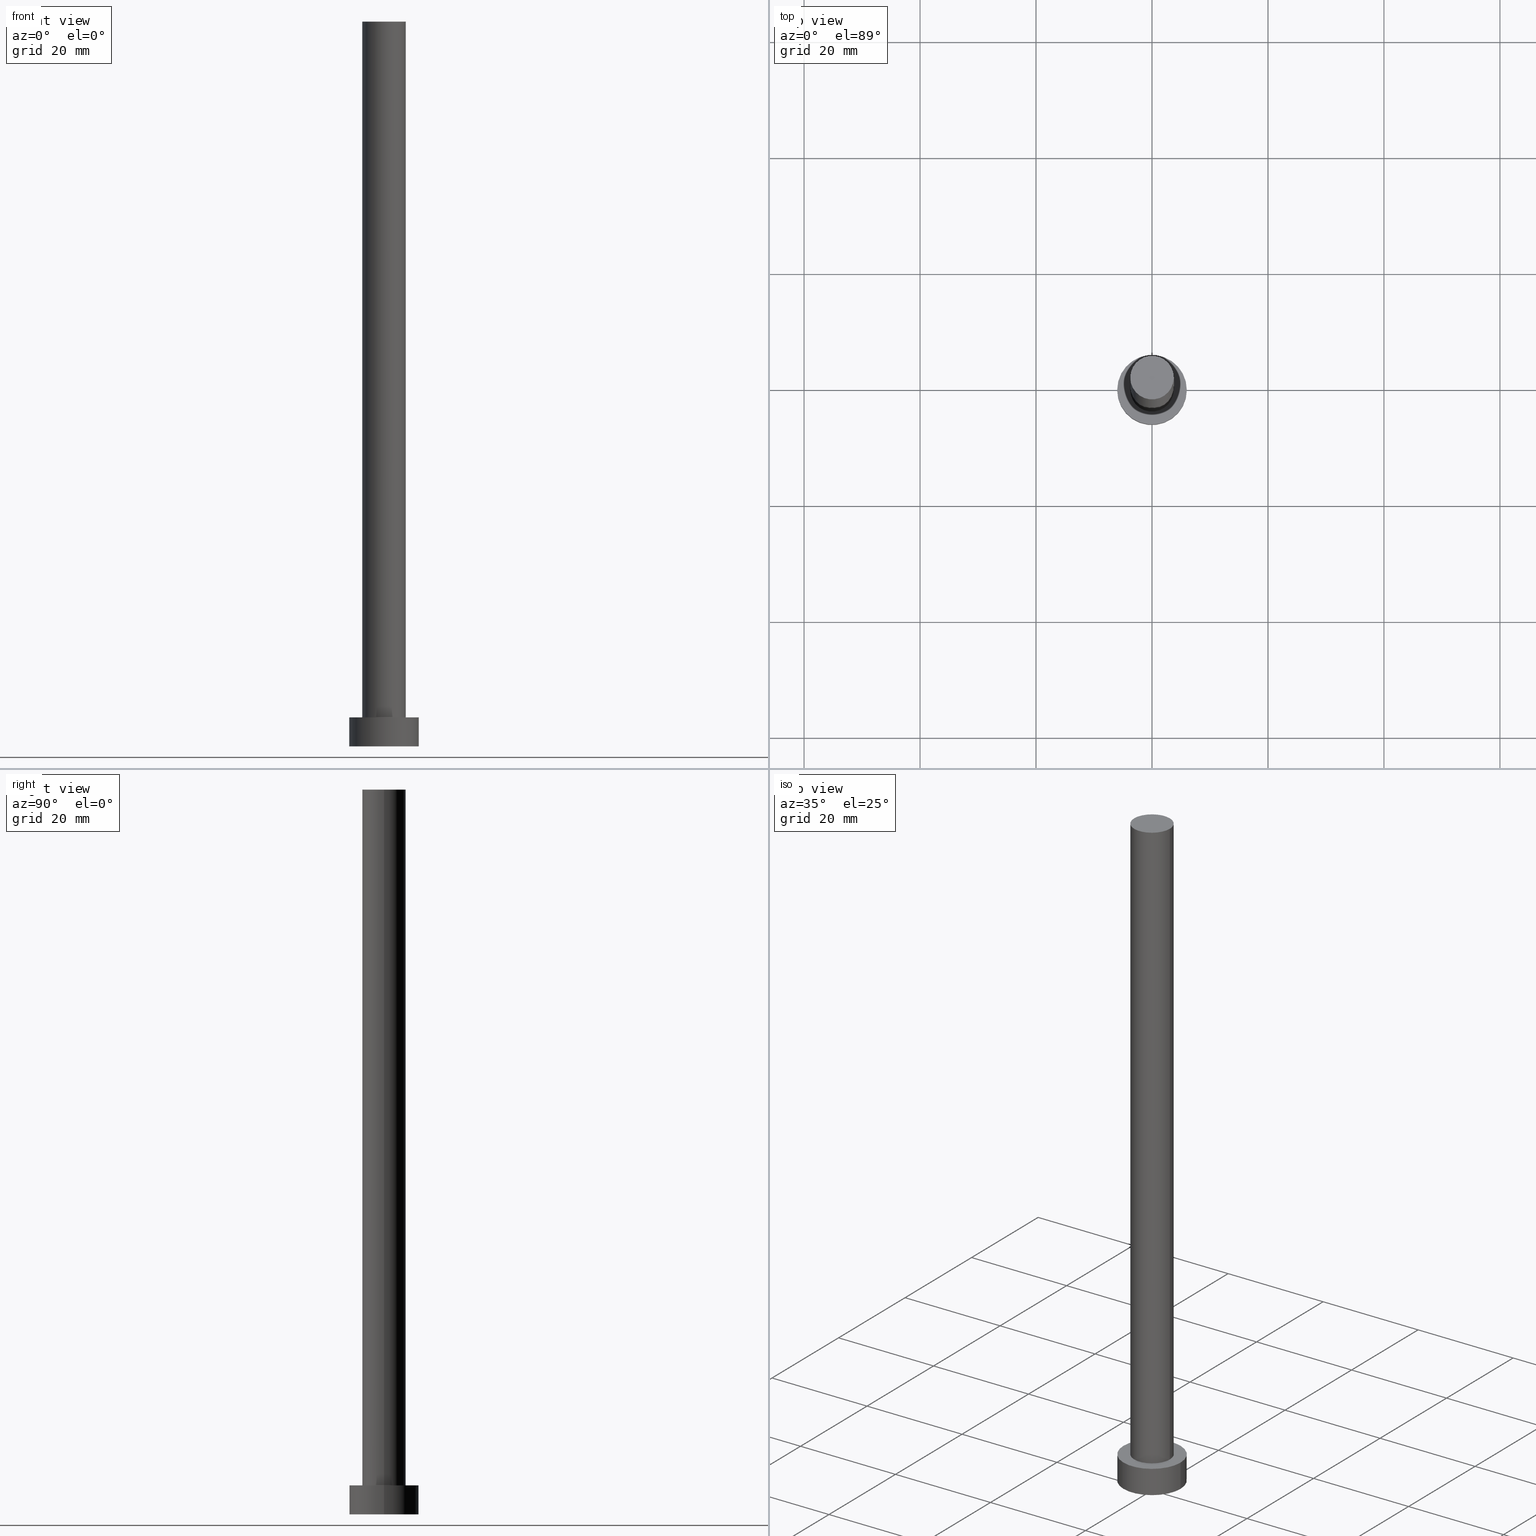
[diagram: canonical four-view strip — front | top / right | iso, engineering-drawing reading convention]
A machine part, canonical four-view strip (front | top / right | iso — engineering-drawing reading convention). The complete STEP part file that produces these views, byte-faithful:
ISO-10303-21;
HEADER;
FILE_DESCRIPTION (( 'STEP AP203' ),
    '1' );
FILE_NAME ('73c1.STEP',
    '2023-02-13T14:50:13',
    ( '' ),
    ( '' ),
    'SwSTEP 2.0',
    'SolidWorks 2019',
    '' );
FILE_SCHEMA (( 'CONFIG_CONTROL_DESIGN' ));
ENDSEC;

DATA;
#1 = EDGE_CURVE ( 'NONE', #45, #24, #181, .T. ) ;
#2 = VERTEX_POINT ( 'NONE', #171 ) ;
#3 = ORIENTED_EDGE ( 'NONE', *, *, #178, .F. ) ;
#4 = EDGE_LOOP ( 'NONE', ( #102, #169, #203, #167 ) ) ;
#5 = CC_DESIGN_APPROVAL ( #6, ( #12 ) ) ;
#6 = APPROVAL ( #132, 'NEUR�EN�' ) ;
#7 = CIRCLE ( 'NONE', #68, 3.750000000000000000 ) ;
#8 = CARTESIAN_POINT ( 'NONE',  ( 0.000000000000000000, 0.000000000000000000, 5.000000000000000000 ) ) ;
#9 = APPROVAL_STATUS ( 'not_yet_approved' ) ;
#10 = ADVANCED_BREP_SHAPE_REPRESENTATION ( '73c1', ( #71, #21 ), #152 ) ;
#11 = CARTESIAN_POINT ( 'NONE',  ( 0.000000000000000000, 0.000000000000000000, 125.0000000000000000 ) ) ;
#12 = SECURITY_CLASSIFICATION ( '', '', #89 ) ;
#13 = APPROVAL_ROLE ( '' ) ;
#14 = EDGE_LOOP ( 'NONE', ( #236, #143, #245, #40 ) ) ;
#15 = EDGE_CURVE ( 'NONE', #86, #204, #208, .T. ) ;
#16 = APPROVAL_DATE_TIME ( #33, #219 ) ;
#17 = CARTESIAN_POINT ( 'NONE',  ( 0.000000000000000000, 0.000000000000000000, 0.000000000000000000 ) ) ;
#18 = CALENDAR_DATE ( 2023, 13, 2 ) ;
#19 = DIRECTION ( 'NONE',  ( -0.000000000000000000, -0.000000000000000000, -1.000000000000000000 ) ) ;
#20 = PERSON_AND_ORGANIZATION_ROLE ( 'creator' ) ;
#21 = AXIS2_PLACEMENT_3D ( 'NONE', #161, #212, #38 ) ;
#22 = CARTESIAN_POINT ( 'NONE',  ( 6.000000000000000888, 7.347880794884120722E-16, 0.000000000000000000 ) ) ;
#23 = PRODUCT ( '73c1', '73c1', '', ( #154 ) ) ;
#24 = VERTEX_POINT ( 'NONE', #49 ) ;
#25 = EDGE_CURVE ( 'NONE', #85, #45, #180, .T. ) ;
#26 = ORIENTED_EDGE ( 'NONE', *, *, #160, .F. ) ;
#27 = CARTESIAN_POINT ( 'NONE',  ( 6.000000000000000888, 7.347880794884120722E-16, 5.000000000000000000 ) ) ;
#28 = PERSON_AND_ORGANIZATION_ROLE ( 'design_owner' ) ;
#29 = DIRECTION ( 'NONE',  ( 0.000000000000000000, 0.000000000000000000, 1.000000000000000000 ) ) ;
#30 = APPROVAL_DATE_TIME ( #211, #6 ) ;
#31 = DIRECTION ( 'NONE',  ( 0.000000000000000000, 0.000000000000000000, 1.000000000000000000 ) ) ;
#32 = CARTESIAN_POINT ( 'NONE',  ( 3.750000000000000000, 4.592425496802573972E-16, 125.0000000000000000 ) ) ;
#33 = DATE_AND_TIME ( #150, #67 ) ;
#34 = APPROVAL_PERSON_ORGANIZATION ( #182, #97, #111 ) ;
#35 = DIRECTION ( 'NONE',  ( 0.000000000000000000, 0.000000000000000000, 1.000000000000000000 ) ) ;
#36 = DIRECTION ( 'NONE',  ( 1.000000000000000000, 0.000000000000000000, -0.000000000000000000 ) ) ;
#37 = CIRCLE ( 'NONE', #125, 6.000000000000000888 ) ;
#38 = DIRECTION ( 'NONE',  ( 1.000000000000000000, 0.000000000000000000, 0.000000000000000000 ) ) ;
#39 = CC_DESIGN_APPROVAL ( #219, ( #142 ) ) ;
#40 = ORIENTED_EDGE ( 'NONE', *, *, #163, .T. ) ;
#41 = EDGE_CURVE ( 'NONE', #24, #45, #7, .T. ) ;
#42 = ORIENTED_EDGE ( 'NONE', *, *, #50, .F. ) ;
#43 = AXIS2_PLACEMENT_3D ( 'NONE', #116, #185, #255 ) ;
#44 = ADVANCED_FACE ( 'NONE', ( #190 ), #240, .T. ) ;
#45 = VERTEX_POINT ( 'NONE', #247 ) ;
#46 = DIRECTION ( 'NONE',  ( -0.000000000000000000, -0.000000000000000000, -1.000000000000000000 ) ) ;
#47 = AXIS2_PLACEMENT_3D ( 'NONE', #151, #79, #36 ) ;
#48 = APPROVAL_STATUS ( 'not_yet_approved' ) ;
#49 = CARTESIAN_POINT ( 'NONE',  ( 3.750000000000000000, 4.592425496802573972E-16, 5.000000000000000000 ) ) ;
#50 = EDGE_CURVE ( 'NONE', #86, #186, #223, .T. ) ;
#51 = CARTESIAN_POINT ( 'NONE',  ( -3.750000000000000000, 0.000000000000000000, 125.0000000000000000 ) ) ;
#52 = COORDINATED_UNIVERSAL_TIME_OFFSET ( 1, 0, .AHEAD. ) ;
#53 = DIRECTION ( 'NONE',  ( 0.000000000000000000, 0.000000000000000000, 1.000000000000000000 ) ) ;
#54 = CC_DESIGN_DATE_AND_TIME_ASSIGNMENT ( #172, #230, ( #108 ) ) ;
#55 = FACE_OUTER_BOUND ( 'NONE', #202, .T. ) ;
#56 = DIRECTION ( 'NONE',  ( -0.000000000000000000, -0.000000000000000000, -1.000000000000000000 ) ) ;
#57 = DIRECTION ( 'NONE',  ( 0.000000000000000000, 0.000000000000000000, 1.000000000000000000 ) ) ;
#58 = DIRECTION ( 'NONE',  ( -0.000000000000000000, -0.000000000000000000, -1.000000000000000000 ) ) ;
#59 = ADVANCED_FACE ( 'NONE', ( #94 ), #129, .T. ) ;
#60 = ORIENTED_EDGE ( 'NONE', *, *, #1, .F. ) ;
#61 = EDGE_CURVE ( 'NONE', #2, #24, #146, .T. ) ;
#62 = VERTEX_POINT ( 'NONE', #175 ) ;
#63 = AXIS2_PLACEMENT_3D ( 'NONE', #250, #53, #229 ) ;
#64 = ORIENTED_EDGE ( 'NONE', *, *, #160, .T. ) ;
#65 = CARTESIAN_POINT ( 'NONE',  ( 0.000000000000000000, 0.000000000000000000, 5.000000000000000000 ) ) ;
#66 = CC_DESIGN_PERSON_AND_ORGANIZATION_ASSIGNMENT ( #198, #75, ( #108 ) ) ;
#67 = LOCAL_TIME ( 15, 50, 13.00000000000000000, #52 ) ;
#68 = AXIS2_PLACEMENT_3D ( 'NONE', #8, #155, #134 ) ;
#69 = CALENDAR_DATE ( 2023, 13, 2 ) ;
#70 = DIRECTION ( 'NONE',  ( -0.000000000000000000, -0.000000000000000000, -1.000000000000000000 ) ) ;
#71 = MANIFOLD_SOLID_BREP ( 'P�idat vysunut�m3', #215 ) ;
#72 = PERSON_AND_ORGANIZATION ( #217, #232 ) ;
#73 = EDGE_LOOP ( 'NONE', ( #60, #216 ) ) ;
#74 = ADVANCED_FACE ( 'NONE', ( #149, #55 ), #92, .T. ) ;
#75 = PERSON_AND_ORGANIZATION_ROLE ( 'creator' ) ;
#76 = DIRECTION ( 'NONE',  ( -1.000000000000000000, 0.000000000000000000, 0.000000000000000000 ) ) ;
#77 = PERSON_AND_ORGANIZATION_ROLE ( 'classification_officer' ) ;
#78 = COORDINATED_UNIVERSAL_TIME_OFFSET ( 1, 0, .AHEAD. ) ;
#79 = DIRECTION ( 'NONE',  ( 0.000000000000000000, 0.000000000000000000, 1.000000000000000000 ) ) ;
#80 =( LENGTH_UNIT ( ) NAMED_UNIT ( * ) SI_UNIT ( .MILLI., .METRE. ) );
#81 = CIRCLE ( 'NONE', #218, 6.000000000000000888 ) ;
#82 = CIRCLE ( 'NONE', #248, 3.750000000000000000 ) ;
#83 = ORIENTED_EDGE ( 'NONE', *, *, #87, .T. ) ;
#84 = ORIENTED_EDGE ( 'NONE', *, *, #238, .T. ) ;
#85 = VERTEX_POINT ( 'NONE', #51 ) ;
#86 = VERTEX_POINT ( 'NONE', #131 ) ;
#87 = EDGE_CURVE ( 'NONE', #85, #2, #139, .T. ) ;
#88 = CYLINDRICAL_SURFACE ( 'NONE', #235, 3.750000000000000000 ) ;
#89 = SECURITY_CLASSIFICATION_LEVEL ( 'unclassified' ) ;
#90 = DIRECTION ( 'NONE',  ( 0.000000000000000000, 0.000000000000000000, 1.000000000000000000 ) ) ;
#91 = PERSON_AND_ORGANIZATION ( #217, #232 ) ;
#92 = PLANE ( 'NONE',  #241 ) ;
#93 = PERSON_AND_ORGANIZATION ( #217, #232 ) ;
#94 = FACE_OUTER_BOUND ( 'NONE', #14, .T. ) ;
#95 = ORIENTED_EDGE ( 'NONE', *, *, #163, .F. ) ;
#96 = DATE_AND_TIME ( #69, #254 ) ;
#97 = APPROVAL ( #9, 'NEUR�EN�' ) ;
#98 = CARTESIAN_POINT ( 'NONE',  ( -6.000000000000000888, 0.000000000000000000, 5.000000000000000000 ) ) ;
#99 = AXIS2_PLACEMENT_3D ( 'NONE', #17, #29, #109 ) ;
#100 = AXIS2_PLACEMENT_3D ( 'NONE', #65, #105, #228 ) ;
#101 = ORIENTED_EDGE ( 'NONE', *, *, #61, .F. ) ;
#102 = ORIENTED_EDGE ( 'NONE', *, *, #123, .F. ) ;
#103 = LOCAL_TIME ( 15, 50, 13.00000000000000000, #78 ) ;
#104 = ORIENTED_EDGE ( 'NONE', *, *, #87, .F. ) ;
#105 = DIRECTION ( 'NONE',  ( -0.000000000000000000, -0.000000000000000000, -1.000000000000000000 ) ) ;
#106 = PERSON_AND_ORGANIZATION ( #217, #232 ) ;
#107 = DIRECTION ( 'NONE',  ( -1.000000000000000000, 0.000000000000000000, 0.000000000000000000 ) ) ;
#108 = PRODUCT_DEFINITION ( 'NEZN�M�', '', #142, #118 ) ;
#109 = DIRECTION ( 'NONE',  ( 1.000000000000000000, 0.000000000000000000, -0.000000000000000000 ) ) ;
#110 = DIRECTION ( 'NONE',  ( 0.000000000000000000, 0.000000000000000000, 1.000000000000000000 ) ) ;
#111 = APPROVAL_ROLE ( '' ) ;
#112 = CARTESIAN_POINT ( 'NONE',  ( -3.750000000000000000, 0.000000000000000000, 125.0000000000000000 ) ) ;
#113 = DIRECTION ( 'NONE',  ( -1.000000000000000000, 0.000000000000000000, 0.000000000000000000 ) ) ;
#114 = CC_DESIGN_SECURITY_CLASSIFICATION ( #12, ( #142 ) ) ;
#115 = ADVANCED_FACE ( 'NONE', ( #194 ), #197, .F. ) ;
#116 = CARTESIAN_POINT ( 'NONE',  ( 0.000000000000000000, 0.000000000000000000, 0.000000000000000000 ) ) ;
#117 = FACE_OUTER_BOUND ( 'NONE', #237, .T. ) ;
#118 = DESIGN_CONTEXT ( 'detailed design', #201, 'design' ) ;
#119 = ADVANCED_FACE ( 'NONE', ( #210 ), #88, .T. ) ;
#120 = LOCAL_TIME ( 15, 50, 13.00000000000000000, #246 ) ;
#121 = ORIENTED_EDGE ( 'NONE', *, *, #50, .T. ) ;
#122 = EDGE_LOOP ( 'NONE', ( #83, #128 ) ) ;
#123 = EDGE_CURVE ( 'NONE', #2, #85, #82, .T. ) ;
#124 = UNCERTAINTY_MEASURE_WITH_UNIT (LENGTH_MEASURE( 1.000000000000000082E-05 ), #80, 'distance_accuracy_value', 'NONE');
#125 = AXIS2_PLACEMENT_3D ( 'NONE', #200, #234, #233 ) ;
#126 = ORIENTED_EDGE ( 'NONE', *, *, #15, .T. ) ;
#127 = PRODUCT_DEFINITION_SHAPE ( 'NONE', 'NONE',  #108 ) ;
#128 = ORIENTED_EDGE ( 'NONE', *, *, #123, .T. ) ;
#129 = CYLINDRICAL_SURFACE ( 'NONE', #100, 6.000000000000000888 ) ;
#130 = CALENDAR_DATE ( 2023, 13, 2 ) ;
#131 = CARTESIAN_POINT ( 'NONE',  ( 6.000000000000000888, 7.347880794884120722E-16, 5.000000000000000000 ) ) ;
#132 = APPROVAL_STATUS ( 'not_yet_approved' ) ;
#133 = CARTESIAN_POINT ( 'NONE',  ( 0.000000000000000000, 0.000000000000000000, 5.000000000000000000 ) ) ;
#134 = DIRECTION ( 'NONE',  ( 1.000000000000000000, 0.000000000000000000, 0.000000000000000000 ) ) ;
#135 = CIRCLE ( 'NONE', #43, 6.000000000000000888 ) ;
#136 = DIRECTION ( 'NONE',  ( 1.000000000000000000, 0.000000000000000000, 0.000000000000000000 ) ) ;
#137 = APPLICATION_PROTOCOL_DEFINITION ( 'international standard', 'config_control_design', 1994, #201 ) ;
#138 =( NAMED_UNIT ( * ) SI_UNIT ( $, .STERADIAN. ) SOLID_ANGLE_UNIT ( ) );
#139 = CIRCLE ( 'NONE', #158, 3.750000000000000000 ) ;
#140 =( NAMED_UNIT ( * ) PLANE_ANGLE_UNIT ( ) SI_UNIT ( $, .RADIAN. ) );
#141 = AXIS2_PLACEMENT_3D ( 'NONE', #133, #157, #76 ) ;
#142 = PRODUCT_DEFINITION_FORMATION_WITH_SPECIFIED_SOURCE ( 'LIBOVOLN�', '', #23, .NOT_KNOWN. ) ;
#143 = ORIENTED_EDGE ( 'NONE', *, *, #238, .F. ) ;
#144 = VECTOR ( 'NONE', #70, 1000.000000000000000 ) ;
#145 = CC_DESIGN_DATE_AND_TIME_ASSIGNMENT ( #179, #176, ( #12 ) ) ;
#146 = LINE ( 'NONE', #32, #148 ) ;
#147 = APPLICATION_CONTEXT ( 'configuration controlled 3d designs of mechanical parts and assemblies' ) ;
#148 = VECTOR ( 'NONE', #221, 1000.000000000000000 ) ;
#149 = FACE_BOUND ( 'NONE', #73, .T. ) ;
#150 = CALENDAR_DATE ( 2023, 13, 2 ) ;
#151 = CARTESIAN_POINT ( 'NONE',  ( 0.000000000000000000, 0.000000000000000000, 125.0000000000000000 ) ) ;
#152 =( GEOMETRIC_REPRESENTATION_CONTEXT ( 3 ) GLOBAL_UNCERTAINTY_ASSIGNED_CONTEXT ( ( #124 ) ) GLOBAL_UNIT_ASSIGNED_CONTEXT ( ( #80, #140, #138 ) ) REPRESENTATION_CONTEXT ( 'NONE', 'WORKASPACE' ) );
#153 = ADVANCED_FACE ( 'NONE', ( #173 ), #242, .T. ) ;
#154 = MECHANICAL_CONTEXT ( 'NONE', #147, 'mechanical' ) ;
#155 = DIRECTION ( 'NONE',  ( 0.000000000000000000, 0.000000000000000000, 1.000000000000000000 ) ) ;
#156 = PERSON_AND_ORGANIZATION ( #217, #232 ) ;
#157 = DIRECTION ( 'NONE',  ( -0.000000000000000000, -0.000000000000000000, -1.000000000000000000 ) ) ;
#158 = AXIS2_PLACEMENT_3D ( 'NONE', #207, #31, #136 ) ;
#159 = APPROVAL_ROLE ( '' ) ;
#160 = EDGE_CURVE ( 'NONE', #204, #62, #37, .T. ) ;
#161 = CARTESIAN_POINT ( 'NONE',  ( 0.000000000000000000, 0.000000000000000000, 0.000000000000000000 ) ) ;
#162 = CARTESIAN_POINT ( 'NONE',  ( -6.000000000000000888, 0.000000000000000000, 5.000000000000000000 ) ) ;
#163 = EDGE_CURVE ( 'NONE', #62, #204, #135, .T. ) ;
#164 = APPLICATION_PROTOCOL_DEFINITION ( 'international standard', 'config_control_design', 1994, #147 ) ;
#165 = VECTOR ( 'NONE', #46, 1000.000000000000000 ) ;
#166 = EDGE_LOOP ( 'NONE', ( #42, #126, #64, #3 ) ) ;
#167 = ORIENTED_EDGE ( 'NONE', *, *, #25, .F. ) ;
#168 = AXIS2_PLACEMENT_3D ( 'NONE', #199, #56, #113 ) ;
#169 = ORIENTED_EDGE ( 'NONE', *, *, #61, .T. ) ;
#170 = EDGE_LOOP ( 'NONE', ( #95, #26 ) ) ;
#171 = CARTESIAN_POINT ( 'NONE',  ( 3.750000000000000000, 4.592425496802573972E-16, 125.0000000000000000 ) ) ;
#172 = DATE_AND_TIME ( #251, #253 ) ;
#173 = FACE_OUTER_BOUND ( 'NONE', #122, .T. ) ;
#174 = PERSON_AND_ORGANIZATION_ROLE ( 'design_supplier' ) ;
#175 = CARTESIAN_POINT ( 'NONE',  ( -6.000000000000000888, 0.000000000000000000, 0.000000000000000000 ) ) ;
#176 = DATE_TIME_ROLE ( 'classification_date' ) ;
#177 = CARTESIAN_POINT ( 'NONE',  ( 0.000000000000000000, 0.000000000000000000, 125.0000000000000000 ) ) ;
#178 = EDGE_CURVE ( 'NONE', #186, #62, #231, .T. ) ;
#179 = DATE_AND_TIME ( #130, #103 ) ;
#180 = LINE ( 'NONE', #112, #165 ) ;
#181 = CIRCLE ( 'NONE', #249, 3.750000000000000000 ) ;
#182 = PERSON_AND_ORGANIZATION ( #217, #232 ) ;
#183 = CYLINDRICAL_SURFACE ( 'NONE', #168, 3.750000000000000000 ) ;
#184 = DIRECTION ( 'NONE',  ( 1.000000000000000000, 0.000000000000000000, 0.000000000000000000 ) ) ;
#185 = DIRECTION ( 'NONE',  ( 0.000000000000000000, 0.000000000000000000, 1.000000000000000000 ) ) ;
#186 = VERTEX_POINT ( 'NONE', #98 ) ;
#187 = DIRECTION ( 'NONE',  ( 1.000000000000000000, 0.000000000000000000, 0.000000000000000000 ) ) ;
#188 = SHAPE_DEFINITION_REPRESENTATION ( #127, #10 ) ;
#189 = PRODUCT_RELATED_PRODUCT_CATEGORY ( 'detail', '', ( #23 ) ) ;
#190 = FACE_OUTER_BOUND ( 'NONE', #166, .T. ) ;
#191 = COORDINATED_UNIVERSAL_TIME_OFFSET ( 1, 0, .AHEAD. ) ;
#192 = VECTOR ( 'NONE', #58, 1000.000000000000000 ) ;
#193 = DIRECTION ( 'NONE',  ( 1.000000000000000000, 0.000000000000000000, 0.000000000000000000 ) ) ;
#194 = FACE_OUTER_BOUND ( 'NONE', #170, .T. ) ;
#195 = CC_DESIGN_PERSON_AND_ORGANIZATION_ASSIGNMENT ( #196, #77, ( #12 ) ) ;
#196 = PERSON_AND_ORGANIZATION ( #217, #232 ) ;
#197 = PLANE ( 'NONE',  #99 ) ;
#198 = PERSON_AND_ORGANIZATION ( #217, #232 ) ;
#199 = CARTESIAN_POINT ( 'NONE',  ( 0.000000000000000000, 0.000000000000000000, 125.0000000000000000 ) ) ;
#200 = CARTESIAN_POINT ( 'NONE',  ( 0.000000000000000000, 0.000000000000000000, 0.000000000000000000 ) ) ;
#201 = APPLICATION_CONTEXT ( 'configuration controlled 3d designs of mechanical parts and assemblies' ) ;
#202 = EDGE_LOOP ( 'NONE', ( #84, #121 ) ) ;
#203 = ORIENTED_EDGE ( 'NONE', *, *, #41, .T. ) ;
#204 = VERTEX_POINT ( 'NONE', #22 ) ;
#205 = CARTESIAN_POINT ( 'NONE',  ( 0.000000000000000000, 0.000000000000000000, 5.000000000000000000 ) ) ;
#206 = CC_DESIGN_PERSON_AND_ORGANIZATION_ASSIGNMENT ( #72, #28, ( #23 ) ) ;
#207 = CARTESIAN_POINT ( 'NONE',  ( 0.000000000000000000, 0.000000000000000000, 125.0000000000000000 ) ) ;
#208 = LINE ( 'NONE', #27, #144 ) ;
#209 = DIRECTION ( 'NONE',  ( 1.000000000000000000, 0.000000000000000000, -0.000000000000000000 ) ) ;
#210 = FACE_OUTER_BOUND ( 'NONE', #4, .T. ) ;
#211 = DATE_AND_TIME ( #18, #120 ) ;
#212 = DIRECTION ( 'NONE',  ( 0.000000000000000000, 0.000000000000000000, 1.000000000000000000 ) ) ;
#213 = ADVANCED_FACE ( 'NONE', ( #117 ), #183, .T. ) ;
#214 = CARTESIAN_POINT ( 'NONE',  ( 0.000000000000000000, 0.000000000000000000, 5.000000000000000000 ) ) ;
#215 = CLOSED_SHELL ( 'NONE', ( #119, #44, #59, #74, #115, #213, #153 ) ) ;
#216 = ORIENTED_EDGE ( 'NONE', *, *, #41, .F. ) ;
#217 = PERSON ( 'NEUR�EN�', 'NEUR�EN�', 'NEUR�EN�', ('NEUR�EN�'), ('NEUR�EN�'), ('NEUR�EN�') ) ;
#218 = AXIS2_PLACEMENT_3D ( 'NONE', #214, #57, #184 ) ;
#219 = APPROVAL ( #48, 'NEUR�EN�' ) ;
#220 = APPROVAL_PERSON_ORGANIZATION ( #156, #219, #13 ) ;
#221 = DIRECTION ( 'NONE',  ( -0.000000000000000000, -0.000000000000000000, -1.000000000000000000 ) ) ;
#222 = APPROVAL_PERSON_ORGANIZATION ( #93, #6, #159 ) ;
#223 = CIRCLE ( 'NONE', #63, 6.000000000000000888 ) ;
#224 = CARTESIAN_POINT ( 'NONE',  ( 0.000000000000000000, 0.000000000000000000, 5.000000000000000000 ) ) ;
#225 = APPROVAL_DATE_TIME ( #96, #97 ) ;
#226 = ORIENTED_EDGE ( 'NONE', *, *, #1, .T. ) ;
#227 = COORDINATED_UNIVERSAL_TIME_OFFSET ( 1, 0, .AHEAD. ) ;
#228 = DIRECTION ( 'NONE',  ( -1.000000000000000000, 0.000000000000000000, 0.000000000000000000 ) ) ;
#229 = DIRECTION ( 'NONE',  ( 1.000000000000000000, 0.000000000000000000, 0.000000000000000000 ) ) ;
#230 = DATE_TIME_ROLE ( 'creation_date' ) ;
#231 = LINE ( 'NONE', #162, #192 ) ;
#232 = ORGANIZATION ( 'NEUR�EN�', 'NEUR�EN�', '' ) ;
#233 = DIRECTION ( 'NONE',  ( 1.000000000000000000, 0.000000000000000000, 0.000000000000000000 ) ) ;
#234 = DIRECTION ( 'NONE',  ( 0.000000000000000000, 0.000000000000000000, 1.000000000000000000 ) ) ;
#235 = AXIS2_PLACEMENT_3D ( 'NONE', #177, #19, #107 ) ;
#236 = ORIENTED_EDGE ( 'NONE', *, *, #15, .F. ) ;
#237 = EDGE_LOOP ( 'NONE', ( #101, #104, #239, #226 ) ) ;
#238 = EDGE_CURVE ( 'NONE', #186, #86, #81, .T. ) ;
#239 = ORIENTED_EDGE ( 'NONE', *, *, #25, .T. ) ;
#240 = CYLINDRICAL_SURFACE ( 'NONE', #141, 6.000000000000000888 ) ;
#241 = AXIS2_PLACEMENT_3D ( 'NONE', #205, #35, #209 ) ;
#242 = PLANE ( 'NONE',  #47 ) ;
#243 = CC_DESIGN_PERSON_AND_ORGANIZATION_ASSIGNMENT ( #106, #20, ( #142 ) ) ;
#244 = CC_DESIGN_APPROVAL ( #97, ( #108 ) ) ;
#245 = ORIENTED_EDGE ( 'NONE', *, *, #178, .T. ) ;
#246 = COORDINATED_UNIVERSAL_TIME_OFFSET ( 1, 0, .AHEAD. ) ;
#247 = CARTESIAN_POINT ( 'NONE',  ( -3.750000000000000000, 0.000000000000000000, 5.000000000000000000 ) ) ;
#248 = AXIS2_PLACEMENT_3D ( 'NONE', #11, #90, #193 ) ;
#249 = AXIS2_PLACEMENT_3D ( 'NONE', #224, #110, #187 ) ;
#250 = CARTESIAN_POINT ( 'NONE',  ( 0.000000000000000000, 0.000000000000000000, 5.000000000000000000 ) ) ;
#251 = CALENDAR_DATE ( 2023, 13, 2 ) ;
#252 = CC_DESIGN_PERSON_AND_ORGANIZATION_ASSIGNMENT ( #91, #174, ( #142 ) ) ;
#253 = LOCAL_TIME ( 15, 50, 13.00000000000000000, #191 ) ;
#254 = LOCAL_TIME ( 15, 50, 13.00000000000000000, #227 ) ;
#255 = DIRECTION ( 'NONE',  ( 1.000000000000000000, 0.000000000000000000, 0.000000000000000000 ) ) ;
ENDSEC;
END-ISO-10303-21;
